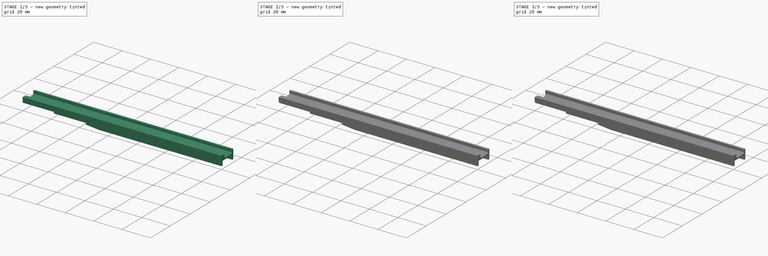
[diagram: build sequence overview — one tinted view per stage of 3, left to right]
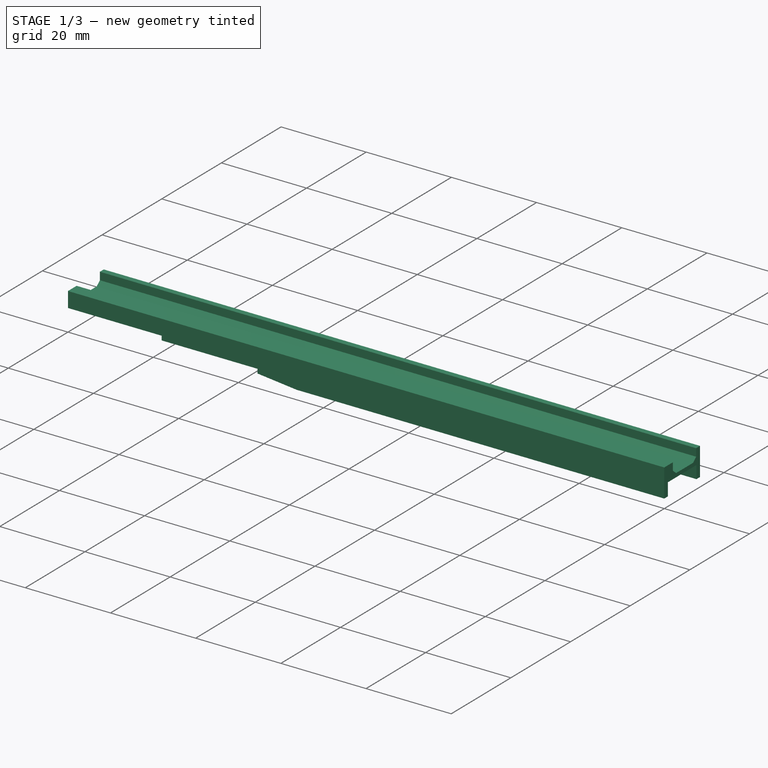
[diagram: stage 1 of 3 — iso view after this stage's code; geometry added in this stage tinted green]
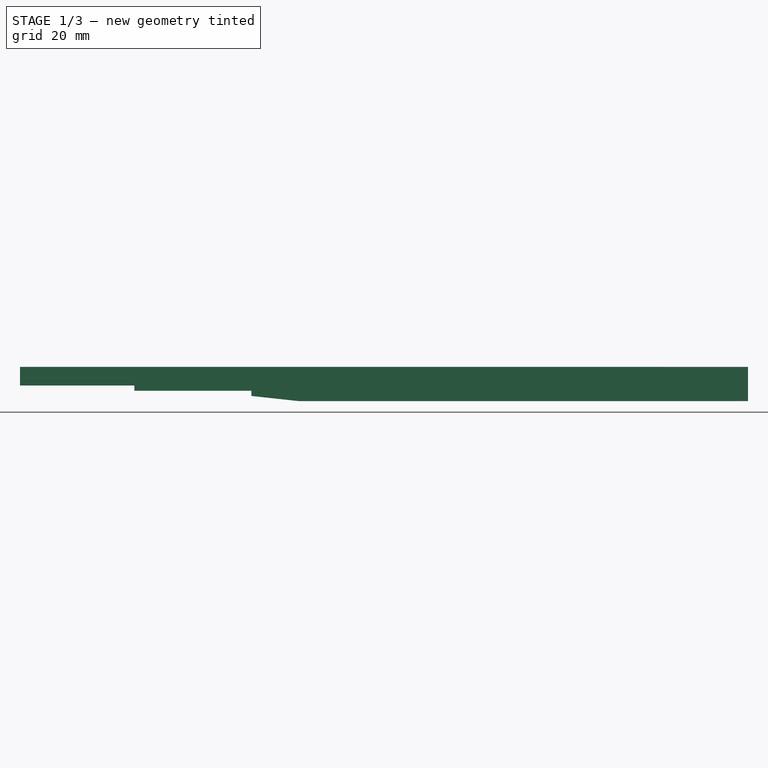
[diagram: stage 1 of 3 — front view after this stage's code; geometry added in this stage tinted green]
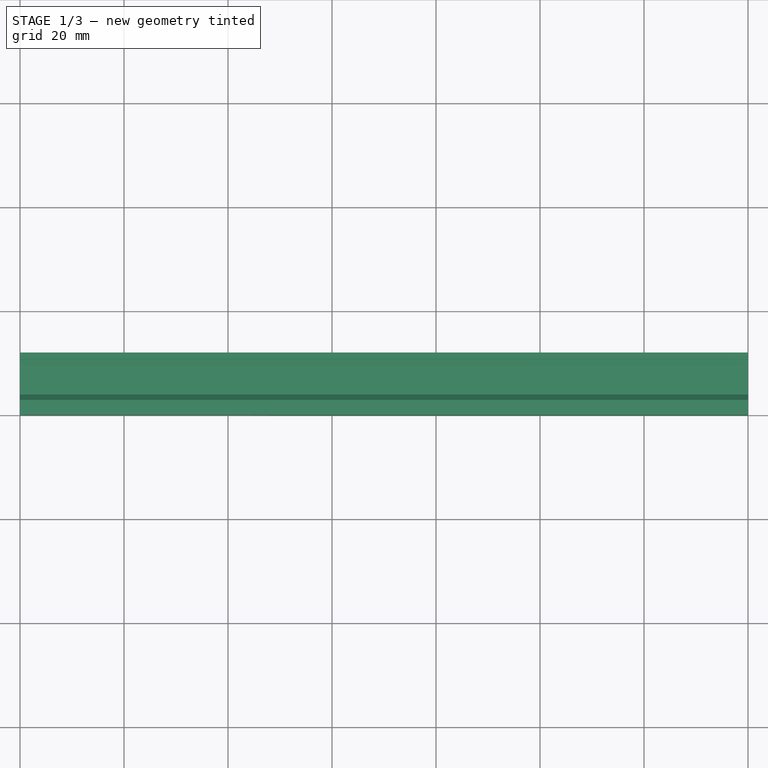
[diagram: stage 1 of 3 — top view after this stage's code; geometry added in this stage tinted green]
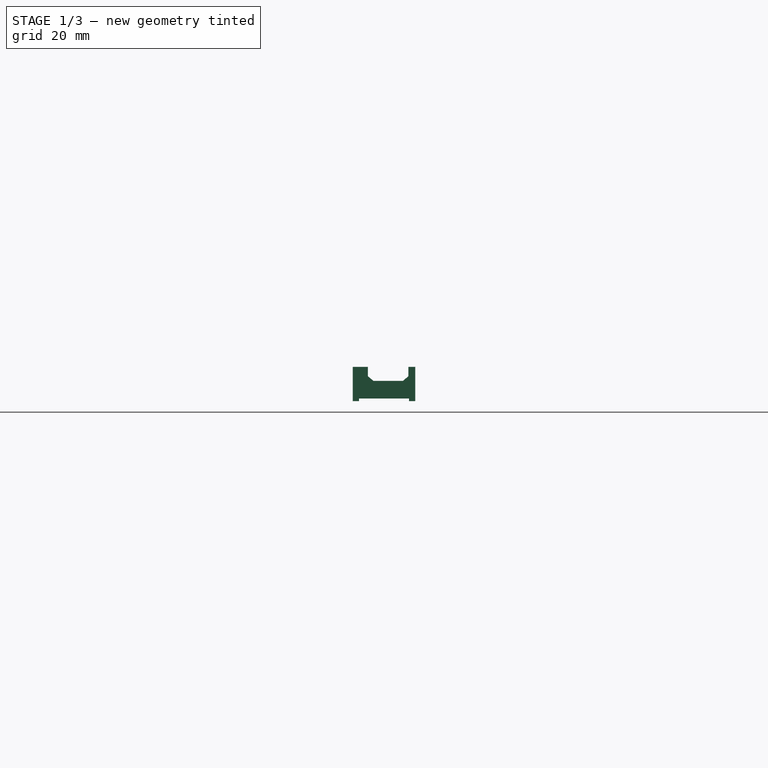
[diagram: stage 1 of 3 — right view after this stage's code; geometry added in this stage tinted green]
FCSTD DOCUMENT  (FreeCAD 1.0R39109 (Git))
Label: Menlu_slide_12mm
License: All rights reserved
LicenseURL: https://en.wikipedia.org/wiki/All_rights_reserved
objects: Sketcher::SketchObject×7, PartDesign::Pad×3, PartDesign::Pocket×2, PartDesign::Chamfer×2, PartDesign::AdditiveLoft×1, PartDesign::Body×1
note: 39 computed .brp shape members not serialized (recipe doc carries the construction recipe); baked Part::Feature solids carry a one-line shape summary decoded from their .brp

FEATURE [Sketcher::SketchObject] Sketch
  ArcFitTolerance = 1e-06
  AttachmentSupport = -> [YZ_Plane]
  FullyConstrained = true
  MakeInternals = false
  MapMode = 5
  Placement = pos=(0,0,0) rot=(0.57735,0.57735,0.57735;2.0944rad)
  sketch-geometry (15):
    g0: LineSegment StartX=12 StartY=-3 StartZ=0 EndX=12 EndY=3.6 EndZ=0
    g1: LineSegment StartX=12 StartY=3.6 StartZ=0 EndX=10.7 EndY=3.6 EndZ=0
    g2: LineSegment StartX=10.7 StartY=3.6 StartZ=0 EndX=10.7 EndY=1.8 EndZ=0
    g3: LineSegment [constr] StartX=10.7 StartY=1.8 StartZ=0 EndX=2.9 EndY=1.8 EndZ=0
    g4: LineSegment StartX=2.9 StartY=1.8 StartZ=0 EndX=2.9 EndY=3.6 EndZ=0
    g5: LineSegment StartX=2.9 StartY=3.6 StartZ=0 EndX=0 EndY=3.6 EndZ=0
    g6: LineSegment StartX=0 StartY=3.6 StartZ=0 EndX=0 EndY=-3 EndZ=0
    g7: LineSegment StartX=0 StartY=-3 StartZ=0 EndX=1.2 EndY=-3 EndZ=0
    g8: LineSegment StartX=1.2 StartY=-3 StartZ=0 EndX=1.2 EndY=0 EndZ=0
    g9: LineSegment StartX=1.2 StartY=0 StartZ=0 EndX=10.8 EndY=0 EndZ=0
    g10: LineSegment StartX=10.8 StartY=0 StartZ=0 EndX=10.8 EndY=-3 EndZ=0
    g11: LineSegment StartX=10.8 StartY=-3 StartZ=0 EndX=12 EndY=-3 EndZ=0
    g12: LineSegment StartX=2.9 StartY=1.8 StartZ=0 EndX=3.97258 EndY=0.9 EndZ=0
    g13: LineSegment StartX=3.97258 StartY=0.9 StartZ=0 EndX=9.62742 EndY=0.9 EndZ=0
    g14: LineSegment StartX=9.62742 StartY=0.9 StartZ=0 EndX=10.7 EndY=1.8 EndZ=0
  constraints (41):
    c: Vertical(g0)
    c: Coincident(g0,g1)
    c: Horizontal(g1)
    c: Coincident(g1,g2)
    c: Vertical(g2)
    c: Coincident(g2,g3)
    c: Horizontal(g3)
    c: Coincident(g3,g4)
    c: Vertical(g4)
    c: Coincident(g4,g5)
    c: PointOnObject(g5,g-2)
    c: DistanceY(g4,g4) = 1.8  'Pocket_Height'
    c: Tangent(g1,g5)
    c: DistanceX(g3,g3) = 7.8  'Pocket_Width'
    c: DistanceX(g5,g5) = 2.9  'Hole_Width'
    c: DistanceX(g1,g1) = 1.3
    c: Coincident(g5,g6)
    c: PointOnObject(g6,g-2)
    c: Coincident(g6,g7)
    c: Horizontal(g7)
    c: Coincident(g7,g8)
    c: Vertical(g8)
    c: Coincident(g8,g9)
    c: Coincident(g9,g10)
    c: Vertical(g10)
    c: Coincident(g10,g11)
    c: Coincident(g11,g0)
    c: Distance(g-1,g5) = 3.6
    c: Tangent(g9,g-1)
    c: Distance(g-1,g7) = 3
    c: DistanceX(g7,g7) = 1.2
    c: DistanceX(g11,g11) = 1.2
    c: Tangent(g11,g7)
    c: Coincident(g3,g12)
    c: Coincident(g12,g13)
    c: Horizontal(g13)
    c: Coincident(g13,g14)
    c: Coincident(g14,g2)
    c: Angle(g12,g3) = 0.698132
    c: Angle(g3,g14) = 0.698132
    c: Distance(g13,g9) = 0.9
FEATURE [PartDesign::Pad] Pad
  Direction = (1,0,0)
  Length = 140
  Length2 = 10
  Placement = pos=(0,0,0) rot=(1,1,1;2.0944rad)
  Profile = -> Sketch
  ReferenceAxis = -> Sketch [N_Axis]
  Refine = true
  Suppressed = false
  Type = 0
FEATURE [Sketcher::SketchObject] Sketch001
  ArcFitTolerance = 1e-06
  AttachmentSupport = -> [Pad]
  ExternalGeometry = -> [Pad]
  FullyConstrained = true
  MakeInternals = false
  MapMode = 5
  Placement = pos=(2.7e-15,12,-1.3e-15) rot=(0.57735,0.57735,0.57735;4.18879rad)
  sketch-geometry (7):
    g0: LineSegment StartX=0 StartY=0 StartZ=0 EndX=0 EndY=22 EndZ=0
    g1: LineSegment StartX=0 StartY=22 StartZ=0 EndX=-1 EndY=22 EndZ=0
    g2: LineSegment StartX=-2 StartY=44.5 StartZ=0 EndX=-3 EndY=53.7052 EndZ=0
    g3: LineSegment StartX=-3 StartY=53.7052 StartZ=0 EndX=-3 EndY=0 EndZ=0
    g4: LineSegment StartX=-3 StartY=0 StartZ=0 EndX=0 EndY=0 EndZ=0
    g5: LineSegment StartX=-2 StartY=44.5 StartZ=0 EndX=-1 EndY=44.5 EndZ=0
    g6: LineSegment StartX=-1 StartY=44.5 StartZ=0 EndX=-1 EndY=22 EndZ=0
  constraints (19):
    c: Coincident(g-1,g0)
    c: PointOnObject(g0,g-2)
    c: Coincident(g0,g1)
    c: Horizontal(g1)
    c: PointOnObject(g2,g-3)
    c: DistanceY(g0,g0) = 22
    c: DistanceY(g1,g2) = 22.5
    c: Coincident(g2,g3)
    c: Coincident(g3,g-3)
    c: Coincident(g3,g4)
    c: Coincident(g4,g0)
    c: Coincident(g2,g5)
    c: Horizontal(g5)
    c: Coincident(g5,g6)
    c: Coincident(g6,g1)
    c: Vertical(g6)
    c: Distance(g5,g5) = 1
    c: Distance(g2,g3) = 1
    c: Angle(g3,g2) = 0.10821
FEATURE [PartDesign::Pocket] Pocket
  BaseFeature = -> Pad
  Direction = (0,-1,0)
  Length = 5
  Length2 = 5
  Placement = pos=(0,0,0) rot=(1,1,1;2.0944rad)
  Profile = -> Sketch001
  ReferenceAxis = -> Sketch001 [N_Axis]
  Refine = true
  Suppressed = false
  Type = 1
FEATURE [Sketcher::SketchObject] Sketch002
  ArcFitTolerance = 1e-06
  AttachmentSupport = -> [Pocket]
  ExternalGeometry = -> [Pocket]
  FullyConstrained = true
  MakeInternals = false
  MapMode = 5
  Placement = pos=(3e-16,1.2,-5e-16) rot=(0.57735,0.57735,0.57735;4.18879rad)
  sketch-geometry (5):
    g0: LineSegment StartX=-2.5 StartY=131 StartZ=0 EndX=2.89e-14 EndY=131 EndZ=0
    g1: LineSegment StartX=2.89e-14 StartY=131 StartZ=0 EndX=2.76e-14 EndY=125.647 EndZ=0
    g2: LineSegment StartX=2.76e-14 StartY=125.647 StartZ=0 EndX=-2 EndY=125.647 EndZ=0
    g3: LineSegment StartX=-2 StartY=125.647 StartZ=0 EndX=-2.5 EndY=130.25 EndZ=0
    g4: LineSegment StartX=-2.5 StartY=130.25 StartZ=0 EndX=-2.5 EndY=131 EndZ=0
  constraints (15):
    c: PointOnObject(g0,g-5)
    c: Horizontal(g0)
    c: Coincident(g0,g1)
    c: PointOnObject(g1,g-5)
    c: Coincident(g1,g2)
    c: Horizontal(g2)
    c: Coincident(g2,g3)
    c: Coincident(g3,g4)
    c: Coincident(g4,g0)
    c: Distance(g2,g-3) = 1
    c: DistanceY(g0,g-4) = 9
    c: DistanceY(g4,g4) = 0.75
    c: Parallel(g-3,g4)
    c: Distance(g-3,g4) = 0.5
    c: Angle(g4,g3) = 0.10821
FEATURE [PartDesign::Pad] Pad001
  BaseFeature = -> Pocket
  Direction = (0,1,0)
  Length = 10
  Length2 = 10
  Placement = pos=(0,0,0) rot=(1,1,1;2.0944rad)
  Profile = -> Sketch002
  ReferenceAxis = -> Sketch002 [N_Axis]
  Refine = true
  Suppressed = false
  Type = 2
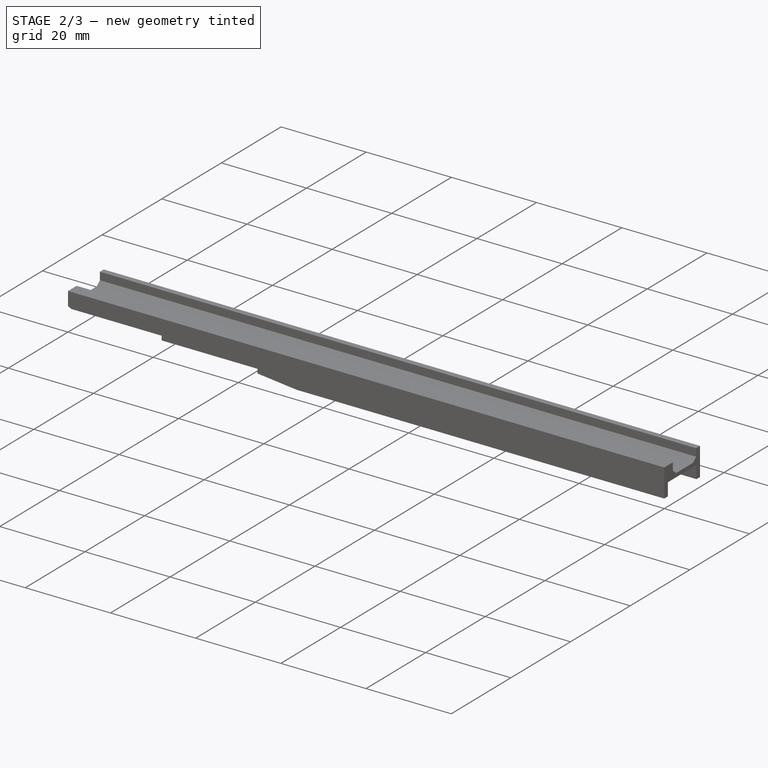
[diagram: stage 2 of 3 — iso view after this stage's code; geometry added in this stage tinted green]
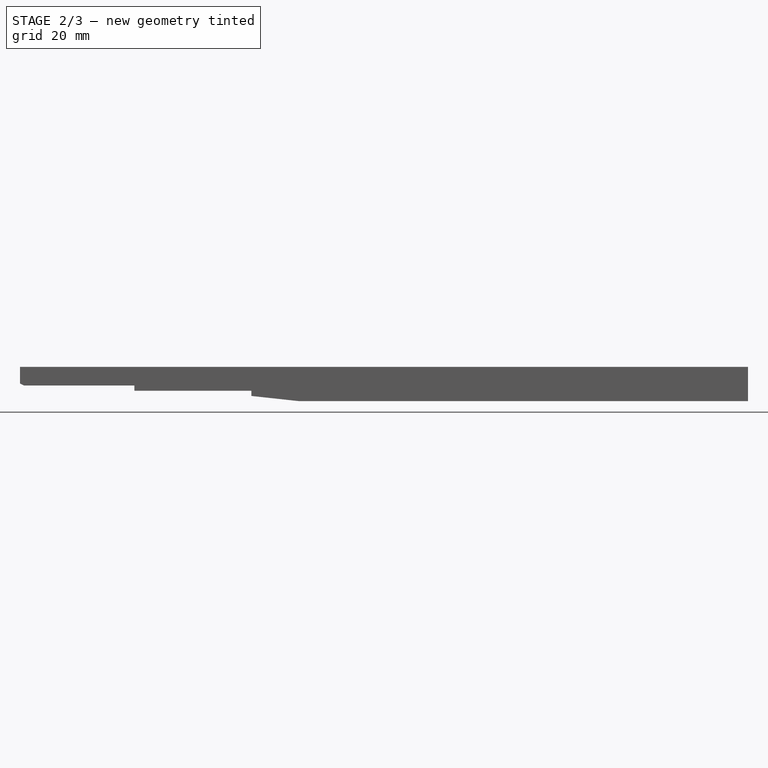
[diagram: stage 2 of 3 — front view after this stage's code; geometry added in this stage tinted green]
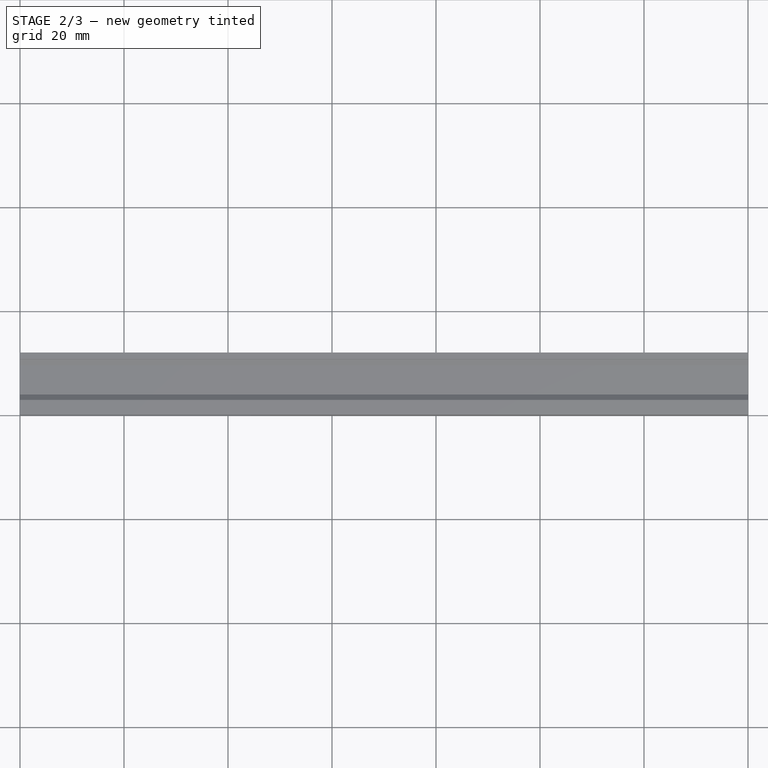
[diagram: stage 2 of 3 — top view after this stage's code; geometry added in this stage tinted green]
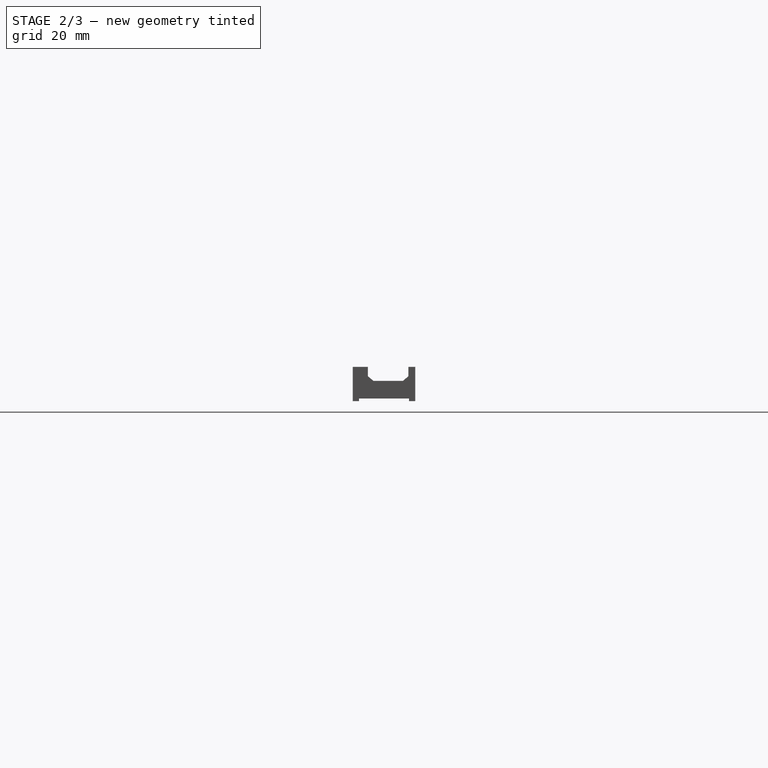
[diagram: stage 2 of 3 — right view after this stage's code; geometry added in this stage tinted green]
FEATURE [Sketcher::SketchObject] Sketch003
  ArcFitTolerance = 1e-06
  AttachmentSupport = -> [Pad001]
  ExternalGeometry = -> [Pad001]
  FullyConstrained = true
  MakeInternals = false
  MapMode = 5
  Placement = pos=(0,0,-9.5e-15) rot=(0.707107,0.707107,0;3.14159rad)
  sketch-geometry (6):
    g0: GeomPoint [constr] X=6 Y=140 Z=0
    g1: Ellipse CenterX=6 CenterY=90 CenterZ=0 NormalX=0 NormalY=0 NormalZ=1 MajorRadius=2 MinorRadius=0.8 AngleXU=-1.5708
    g2: LineSegment [constr] StartX=6 StartY=88 StartZ=0 EndX=6 EndY=92 EndZ=0
    g3: LineSegment [constr] StartX=6.8 StartY=90 StartZ=0 EndX=5.2 EndY=90 EndZ=0
    g4: GeomPoint [constr] X=6 Y=88.167 Z=0
    g5: GeomPoint [constr] X=6 Y=91.833 Z=0
  constraints (7):
    c: Symmetric(g-3,g-3,g0)
    c: InternalAlignment(g2-g5 -> g1) x4
    c: Distance(g1,g2) = 2
    c: Angle(g2) = 1.5708
    c: Distance(g1,g3) = 0.8
    c: Vertical(g1,g0)
    c: DistanceY(g1,g0) = 50
FEATURE [Sketcher::SketchObject] Sketch004
  ArcFitTolerance = 1e-06
  AttachmentOffset = pos=(0,0,2) rot=(0,0,1;0rad)
  AttachmentSupport = -> [Pad001]
  ExternalGeometry = -> [Sketch003,Pad001]
  FullyConstrained = true
  MakeInternals = false
  MapMode = 5
  Placement = pos=(0,0,-2) rot=(0.707107,0.707107,0;3.14159rad)
  sketch-geometry (5):
    g0: Ellipse CenterX=6 CenterY=90 CenterZ=0 NormalX=0 NormalY=0 NormalZ=1 MajorRadius=2.25 MinorRadius=1.5 AngleXU=1.5708
    g1: LineSegment [constr] StartX=6 StartY=92.25 StartZ=0 EndX=6 EndY=87.75 EndZ=0
    g2: LineSegment [constr] StartX=4.5 StartY=90 StartZ=0 EndX=7.5 EndY=90 EndZ=0
    g3: GeomPoint [constr] X=6 Y=91.6771 Z=0
    g4: GeomPoint [constr] X=6 Y=88.3229 Z=0
  constraints (5):
    c: InternalAlignment(g1-g4 -> g0) x4
    c: Coincident(g0,g-3)
    c: DistanceX(g2,g2) = 3
    c: DistanceY(g1,g1) = 4.5
    c: Parallel(g1,g-4)
FEATURE [PartDesign::AdditiveLoft] AdditiveLoft
  BaseFeature = -> Pad001
  Closed = false
  Placement = pos=(0,0,0) rot=(1,1,1;2.0944rad)
  Profile = -> Sketch004
  Refine = true
  Ruled = false
  Sections = -> [Sketch003]
  Suppressed = false
FEATURE [PartDesign::Chamfer] Chamfer
  Angle = 45
  Base = -> AdditiveLoft [Edge16]
  BaseFeature = -> AdditiveLoft
  ChamferType = 1
  FlipDirection = false
  Placement = pos=(0,0,0) rot=(1,1,1;2.0944rad)
  Refine = true
  Size = 0.4
  Size2 = 0.8
  SupportTransform = false
  Suppressed = false
  UseAllEdges = false
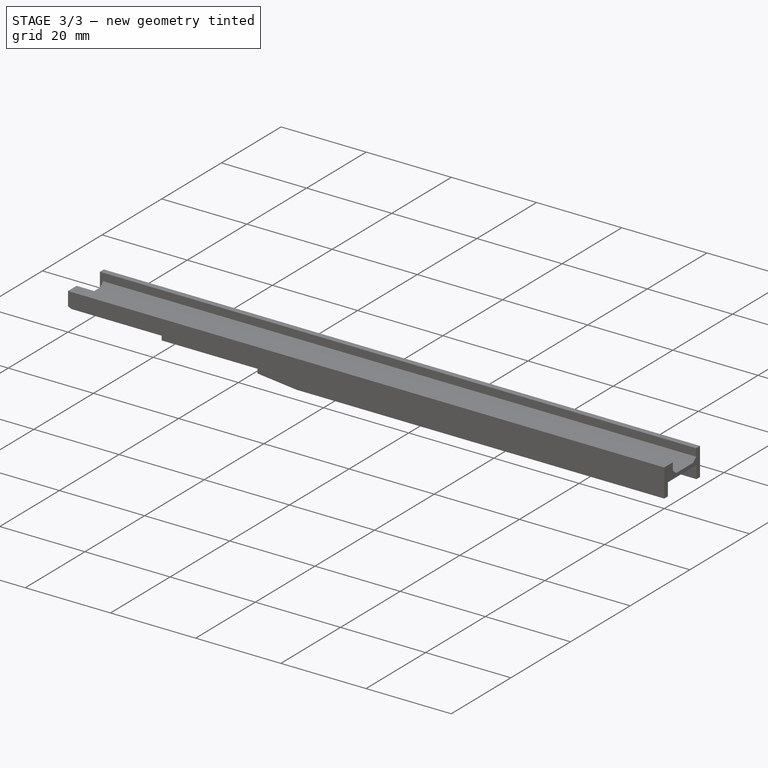
[diagram: stage 3 of 3 — iso view after this stage's code; geometry added in this stage tinted green]
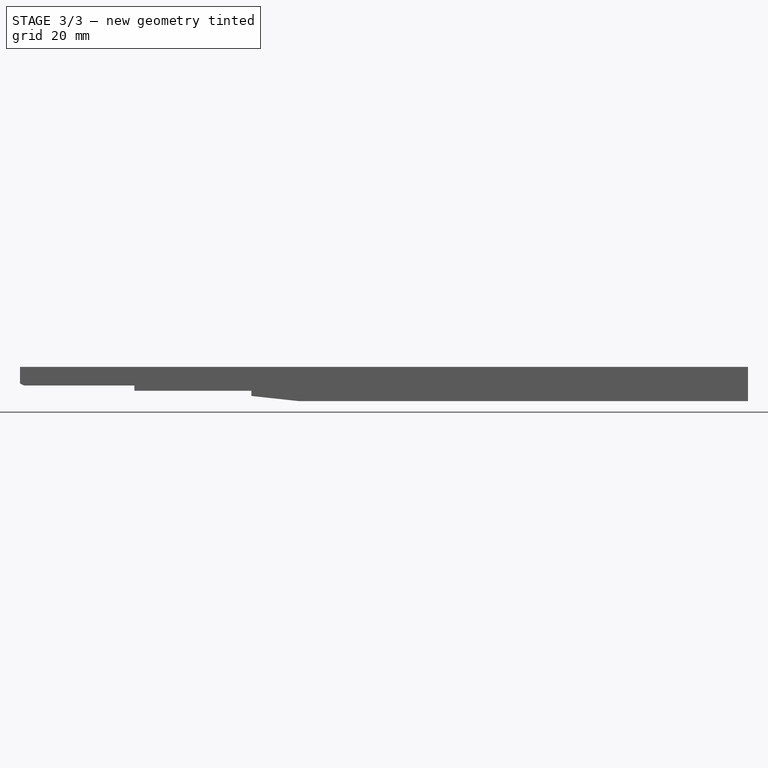
[diagram: stage 3 of 3 — front view after this stage's code; geometry added in this stage tinted green]
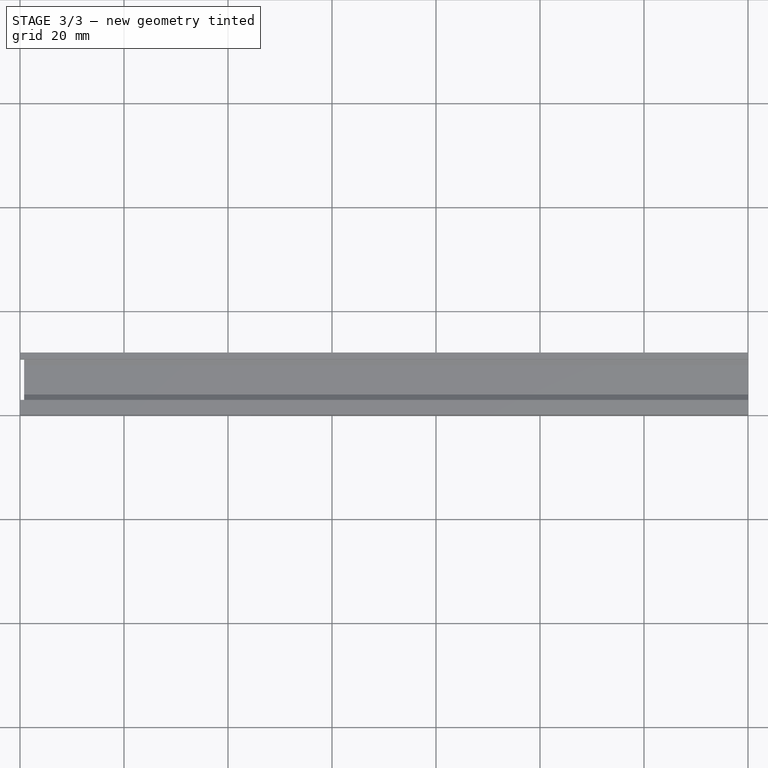
[diagram: stage 3 of 3 — top view after this stage's code; geometry added in this stage tinted green]
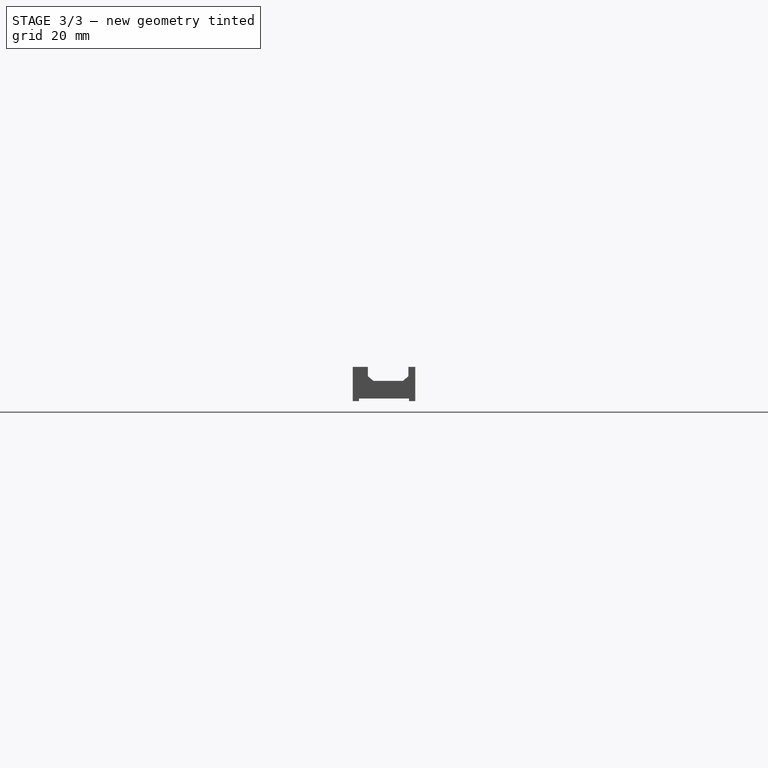
[diagram: stage 3 of 3 — right view after this stage's code; geometry added in this stage tinted green]
FEATURE [Sketcher::SketchObject] Sketch005
  ArcFitTolerance = 1e-06
  AttachmentSupport = -> [Chamfer]
  ExternalGeometry = -> [Chamfer]
  FullyConstrained = true
  MakeInternals = false
  MapMode = 5
  Placement = pos=(0,0,-2.62e-14) rot=(0.707107,0.707107,0;3.14159rad)
  sketch-geometry (4):
    g0: LineSegment StartX=1.2 StartY=44.5 StartZ=0 EndX=1.2 EndY=22 EndZ=0
    g1: LineSegment StartX=1.2 StartY=22 StartZ=0 EndX=10.8 EndY=22 EndZ=0
    g2: LineSegment StartX=10.8 StartY=22 StartZ=0 EndX=10.8 EndY=44.5 EndZ=0
    g3: LineSegment StartX=10.8 StartY=44.5 StartZ=0 EndX=1.2 EndY=44.5 EndZ=0
  constraints (10):
    c: Coincident(g0,g1)
    c: Coincident(g1,g2)
    c: Coincident(g2,g3)
    c: Coincident(g3,g0)
    c: Vertical(g0)
    c: Vertical(g2)
    c: Horizontal(g1)
    c: Horizontal(g3)
    c: Coincident(g0,g-3)
    c: Coincident(g1,g-4)
FEATURE [PartDesign::Pad] Pad002
  BaseFeature = -> Chamfer
  Direction = (0,0,-1)
  Length = 10
  Length2 = 10
  Placement = pos=(0,0,0) rot=(1,1,1;2.0944rad)
  Profile = -> Sketch005
  ReferenceAxis = -> Sketch005 [N_Axis]
  Refine = true
  Suppressed = false
  Type = 3
  UpToFace = -> Chamfer [Face21]
FEATURE [PartDesign::Chamfer] Chamfer001
  Angle = 45
  Base = -> Pad002 [Edge69,Edge76,Edge67,Edge81]
  BaseFeature = -> Pad002
  ChamferType = 0
  FlipDirection = false
  Placement = pos=(0,0,0) rot=(1,1,1;2.0944rad)
  Refine = true
  Size = 0.6
  Size2 = 1
  SupportTransform = false
  Suppressed = false
  UseAllEdges = false
FEATURE [Sketcher::SketchObject] Sketch006
  ArcFitTolerance = 1e-06
  AttachmentSupport = -> [Chamfer001]
  ExternalGeometry = -> [Chamfer001]
  FullyConstrained = true
  MakeInternals = false
  MapMode = 5
  Placement = pos=(-7.2e-15,0,0) rot=(-0.57735,-0.57735,0.57735;2.0944rad)
  sketch-geometry (4):
    g0: LineSegment StartX=2.9 StartY=-1.8 StartZ=0 EndX=10.7 EndY=-1.8 EndZ=0
    g1: LineSegment StartX=10.7 StartY=-1.8 StartZ=0 EndX=10.7 EndY=3.69e-14 EndZ=0
    g2: LineSegment StartX=10.7 StartY=3.68e-14 StartZ=0 EndX=2.9 EndY=2.72e-14 EndZ=0
    g3: LineSegment StartX=2.9 StartY=2.72e-14 StartZ=0 EndX=2.9 EndY=-1.8 EndZ=0
  constraints (9):
    c: Coincident(g0,g1)
    c: Coincident(g1,g2)
    c: Coincident(g2,g3)
    c: Coincident(g3,g0)
    c: Vertical(g1)
    c: Vertical(g3)
    c: Coincident(g0,g-3)
    c: Coincident(g0,g-4)
    c: Tangent(g2,g-5)
FEATURE [PartDesign::Pocket] Pocket001
  BaseFeature = -> Chamfer001
  Direction = (1,-1e-15,1e-16)
  Length = 0.8
  Length2 = 5
  Placement = pos=(0,0,0) rot=(1,1,1;2.0944rad)
  Profile = -> Sketch006
  ReferenceAxis = -> Sketch006 [N_Axis]
  Refine = true
  Suppressed = false
  Type = 0
  UpToShape = -> [Chamfer001]
FEATURE [PartDesign::Body] Body
  AllowCompound = false
  Group = -> [Sketch,Pad,Sketch001,Pocket,Sketch002,Pad001,Sketch003,Sketch004,AdditiveLoft,Chamfer,Sketch005,Pad002,Chamfer001,Sketch006,Pocket001]
  Origin = -> Origin
  Tip = -> Pocket001
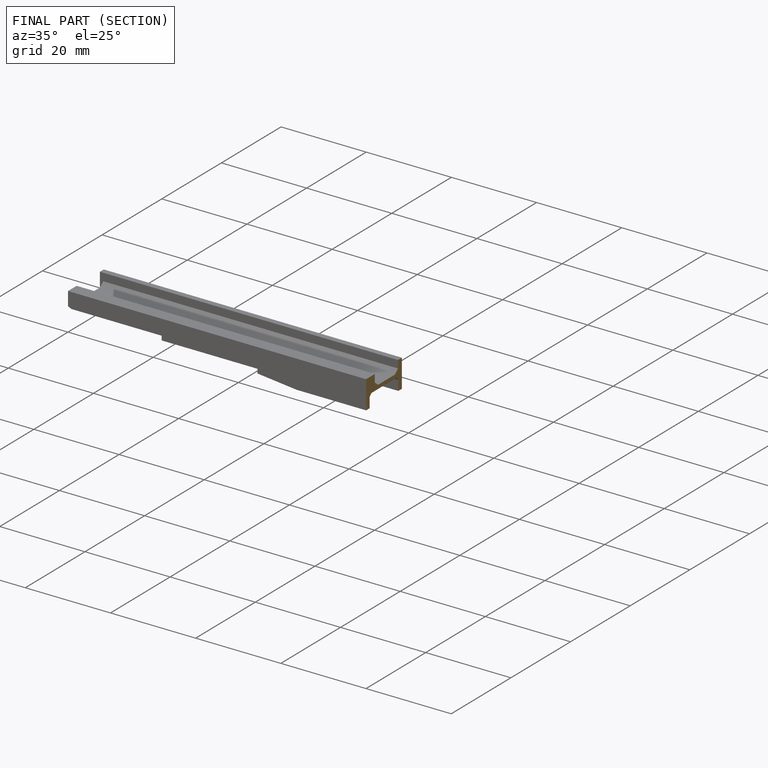
[diagram: finished part — half-section view (interior)]
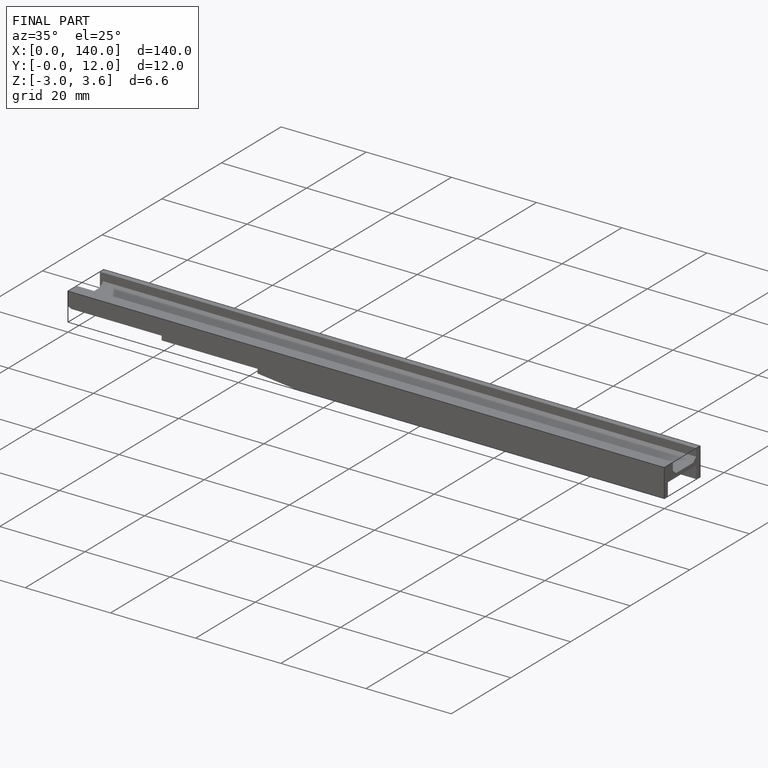
[diagram: finished part — iso view with bounding-box wireframe]
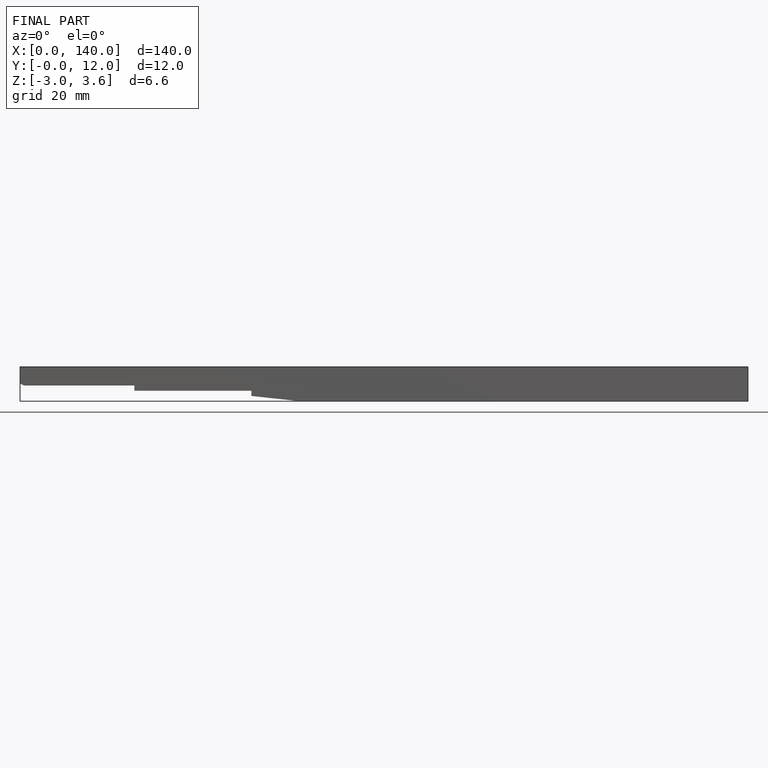
[diagram: finished part — front view with bounding-box wireframe]
